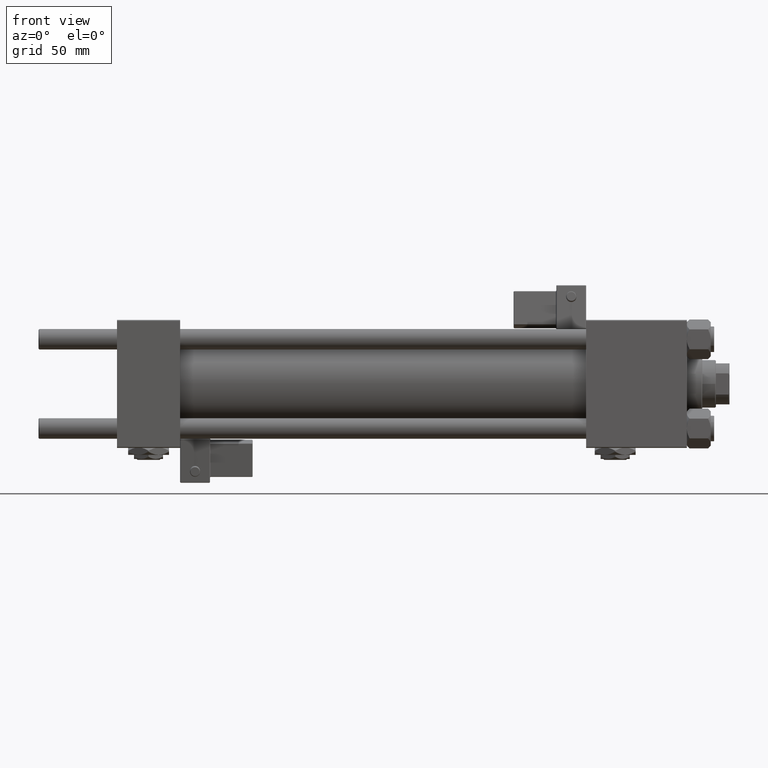
[diagram: clean part render]
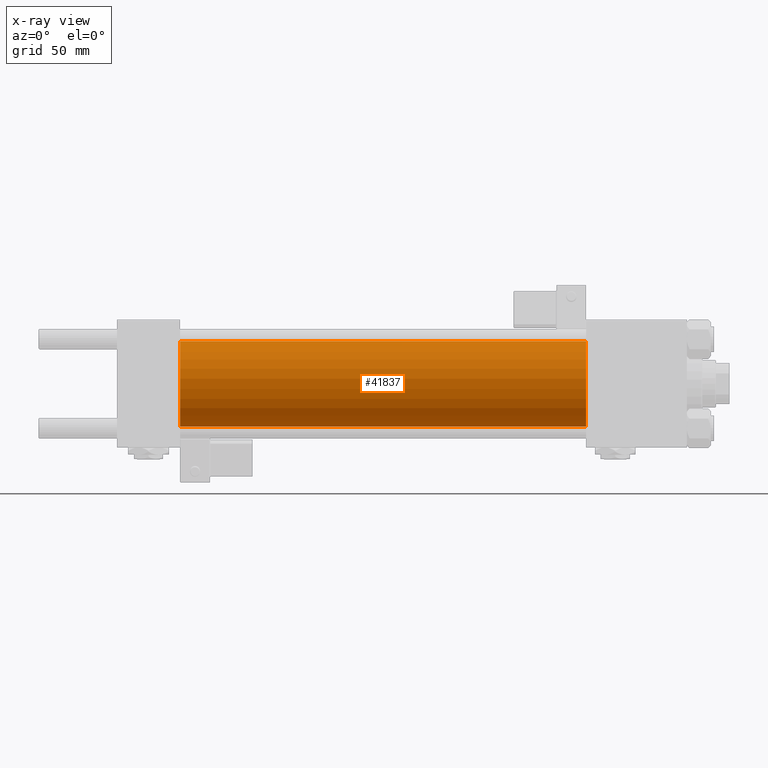
[diagram: x-ray — body ghosted, one internal face saturated and labeled with its STEP entity id]
A machine part, front view, then the same camera in x-ray: the body is ghosted and one INTERNAL B-rep face — a face not visible from any outside direction — is saturated and labeled: STEP entity #41837.
In plain terms, the highlighted cylindrical surface (partial cylindrical patch) has radius 25 mm, axis along (-1, -0, -0).
Its self-contained STEP definition (entity closure, byte-faithful):
#701 = CARTESIAN_POINT ( 'NONE',  ( 274.9999999999999432, 0.000000000000000000, 25.00000000000000000 ) ) ;
#1254 = VERTEX_POINT ( 'NONE', #47141 ) ;
#1989 = VECTOR ( 'NONE', #24708, 1000.000000000000000 ) ;
#2482 = CIRCLE ( 'NONE', #32080, 25.00000000000000000 ) ;
#4325 = CYLINDRICAL_SURFACE ( 'NONE', #46117, 25.00000000000000000 ) ;
#5062 = DIRECTION ( 'NONE',  ( -1.000000000000000000, -0.000000000000000000, -0.000000000000000000 ) ) ;
#7167 = ORIENTED_EDGE ( 'NONE', *, *, #23885, .F. ) ;
#7544 = ORIENTED_EDGE ( 'NONE', *, *, #12951, .T. ) ;
#8840 = CARTESIAN_POINT ( 'NONE',  ( 274.9999999999999432, 3.061616997868383043E-15, -25.00000000000000000 ) ) ;
#10152 = AXIS2_PLACEMENT_3D ( 'NONE', #19077, #43917, #39809 ) ;
#11525 = CARTESIAN_POINT ( 'NONE',  ( 274.9999999999999432, 0.000000000000000000, 25.00000000000000000 ) ) ;
#12263 = VERTEX_POINT ( 'NONE', #11525 ) ;
#12754 = CIRCLE ( 'NONE', #10152, 25.00000000000000000 ) ;
#12951 = EDGE_CURVE ( 'NONE', #30416, #1254, #37792, .T. ) ;
#13031 = DIRECTION ( 'NONE',  ( -1.000000000000000000, -0.000000000000000000, -0.000000000000000000 ) ) ;
#16254 = CARTESIAN_POINT ( 'NONE',  ( 274.9999999999999432, 3.061616997868383043E-15, -25.00000000000000000 ) ) ;
#16330 = CARTESIAN_POINT ( 'NONE',  ( 274.9999999999999432, 0.000000000000000000, 0.000000000000000000 ) ) ;
#17399 = DIRECTION ( 'NONE',  ( 0.000000000000000000, 0.000000000000000000, 1.000000000000000000 ) ) ;
#19077 = CARTESIAN_POINT ( 'NONE',  ( 37.00000000000000000, 0.000000000000000000, 0.000000000000000000 ) ) ;
#20182 = ORIENTED_EDGE ( 'NONE', *, *, #27045, .F. ) ;
#23885 = EDGE_CURVE ( 'NONE', #50528, #1254, #12754, .T. ) ;
#24708 = DIRECTION ( 'NONE',  ( -1.000000000000000000, -0.000000000000000000, -0.000000000000000000 ) ) ;
#27045 = EDGE_CURVE ( 'NONE', #12263, #50528, #38353, .T. ) ;
#28613 = EDGE_CURVE ( 'NONE', #12263, #30416, #2482, .T. ) ;
#28842 = DIRECTION ( 'NONE',  ( 0.000000000000000000, 0.000000000000000000, -1.000000000000000000 ) ) ;
#28867 = FACE_OUTER_BOUND ( 'NONE', #42467, .T. ) ;
#30416 = VERTEX_POINT ( 'NONE', #8840 ) ;
#32080 = AXIS2_PLACEMENT_3D ( 'NONE', #41941, #46309, #28842 ) ;
#37792 = LINE ( 'NONE', #16254, #1989 ) ;
#38353 = LINE ( 'NONE', #701, #44240 ) ;
#39291 = CARTESIAN_POINT ( 'NONE',  ( 37.00000000000000000, 0.000000000000000000, 25.00000000000000000 ) ) ;
#39809 = DIRECTION ( 'NONE',  ( 0.000000000000000000, 0.000000000000000000, -1.000000000000000000 ) ) ;
#41837 = ADVANCED_FACE ( 'NONE', ( #28867 ), #4325, .F. ) ;
#41941 = CARTESIAN_POINT ( 'NONE',  ( 274.9999999999999432, 0.000000000000000000, 0.000000000000000000 ) ) ;
#42467 = EDGE_LOOP ( 'NONE', ( #52212, #7544, #7167, #20182 ) ) ;
#43917 = DIRECTION ( 'NONE',  ( 1.000000000000000000, 0.000000000000000000, 0.000000000000000000 ) ) ;
#44240 = VECTOR ( 'NONE', #5062, 1000.000000000000000 ) ;
#46117 = AXIS2_PLACEMENT_3D ( 'NONE', #16330, #13031, #17399 ) ;
#46309 = DIRECTION ( 'NONE',  ( 1.000000000000000000, 0.000000000000000000, 0.000000000000000000 ) ) ;
#47141 = CARTESIAN_POINT ( 'NONE',  ( 37.00000000000000000, 3.061616997868383043E-15, -25.00000000000000000 ) ) ;
#50528 = VERTEX_POINT ( 'NONE', #39291 ) ;
#52212 = ORIENTED_EDGE ( 'NONE', *, *, #28613, .T. ) ;